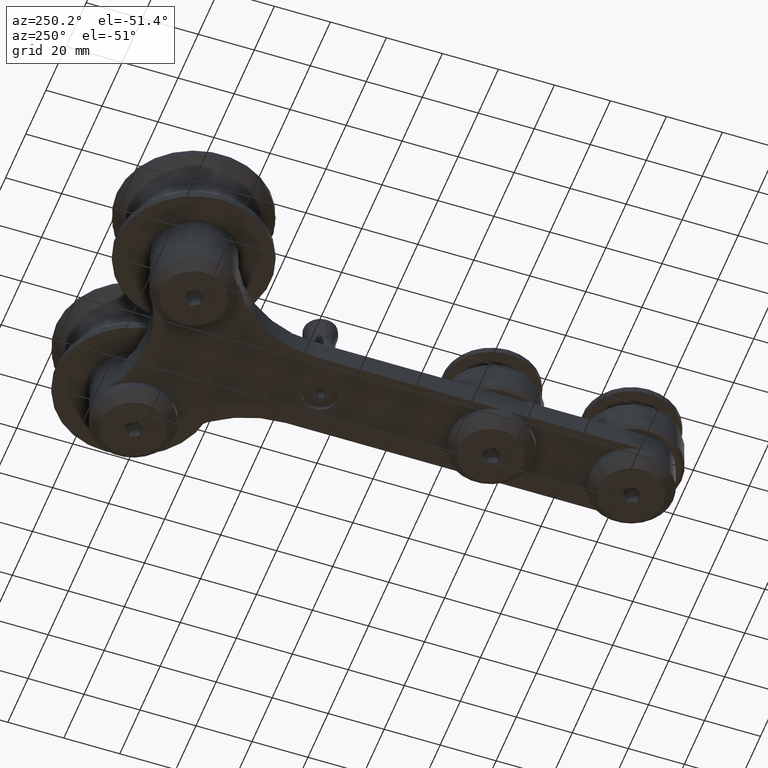
[diagram: clean part render]
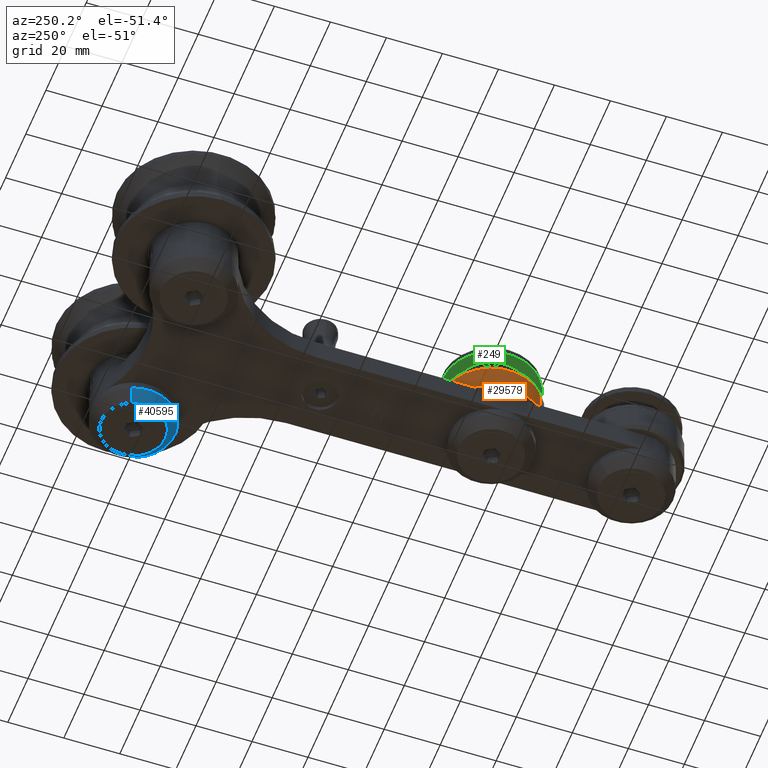
[diagram: same view with three faces highlighted in distinct colors, each labeled with its STEP entity id]
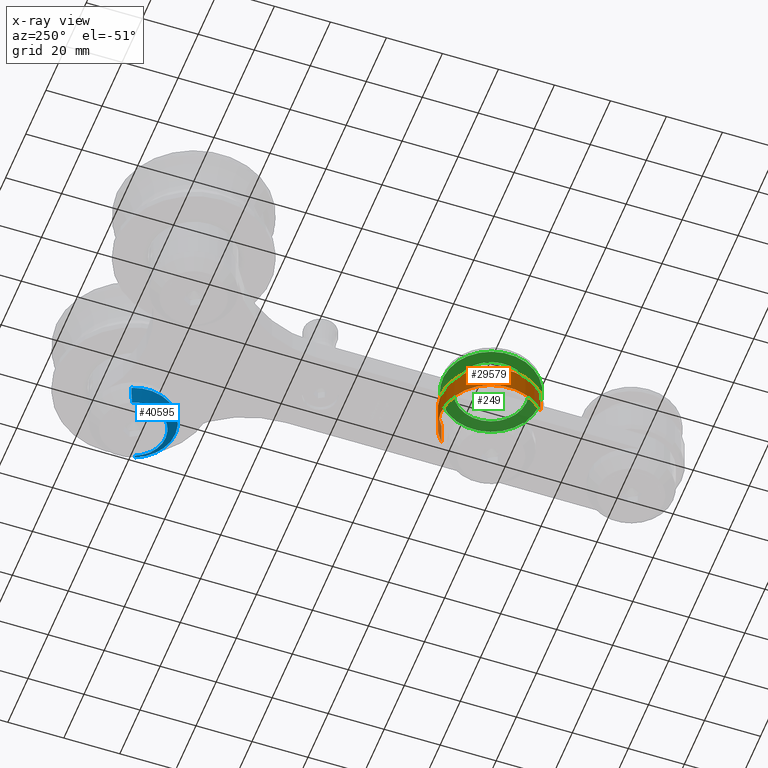
[diagram: x-ray of the same camera — body ghosted, the three highlighted faces saturated]
A machine part, auxiliary view with three faces highlighted in distinct colors.
The next image is the same camera in x-ray (body ghosted, the three faces saturated) — at least one of them is partly hidden behind the body in this view.
Their STEP definitions:

[orange] entity #29579 — the highlighted cylindrical surface (partial cylindrical patch) has radius 18 mm, axis along (-0, -0, 1).
#1122 = CARTESIAN_POINT ( 'NONE',  ( -18.00000000000000000, 2.204364238465235400E-015, 1.000000000000000900 ) ) ;
#1796 = CARTESIAN_POINT ( 'NONE',  ( -18.00000000000000000, 2.204364238465235400E-015, 10.50000000000000000 ) ) ;
#1869 = CARTESIAN_POINT ( 'NONE',  ( 0.0000000000000000000, 0.0000000000000000000, 10.19999999999998300 ) ) ;
#2170 = DIRECTION ( 'NONE',  ( -0.0000000000000000000, -0.0000000000000000000, 1.000000000000000000 ) ) ;
#2865 = EDGE_CURVE ( 'NONE', #4361, #22016, #43754, .T. ) ;
#4361 = VERTEX_POINT ( 'NONE', #1122 ) ;
#5973 = DIRECTION ( 'NONE',  ( 1.000000000000000000, 0.0000000000000000000, 0.0000000000000000000 ) ) ;
#7007 = CARTESIAN_POINT ( 'NONE',  ( -18.00000000000000000, 2.204364238465235400E-015, 10.19999999999998300 ) ) ;
#7397 = ORIENTED_EDGE ( 'NONE', *, *, #2865, .T. ) ;
#7923 = DIRECTION ( 'NONE',  ( 1.000000000000000000, 0.0000000000000000000, 0.0000000000000000000 ) ) ;
#8079 = CARTESIAN_POINT ( 'NONE',  ( 0.0000000000000000000, 0.0000000000000000000, 1.000000000000000900 ) ) ;
#13460 = AXIS2_PLACEMENT_3D ( 'NONE', #8079, #43426, #7923 ) ;
#14182 = ORIENTED_EDGE ( 'NONE', *, *, #39666, .F. ) ;
#15211 = VERTEX_POINT ( 'NONE', #30242 ) ;
#15609 = EDGE_CURVE ( 'NONE', #22016, #15211, #37664, .T. ) ;
#16618 = CARTESIAN_POINT ( 'NONE',  ( 18.00000000000000000, 0.0000000000000000000, 1.000000000000000900 ) ) ;
#16919 = FACE_OUTER_BOUND ( 'NONE', #23287, .T. ) ;
#18022 = CYLINDRICAL_SURFACE ( 'NONE', #32689, 18.00000000000000000 ) ;
#21466 = VECTOR ( 'NONE', #2170, 1000.000000000000000 ) ;
#22016 = VERTEX_POINT ( 'NONE', #16618 ) ;
#23287 = EDGE_LOOP ( 'NONE', ( #14182, #7397, #32967, #24250 ) ) ;
#24250 = ORIENTED_EDGE ( 'NONE', *, *, #38915, .T. ) ;
#25254 = AXIS2_PLACEMENT_3D ( 'NONE', #1869, #41242, #44854 ) ;
#26450 = DIRECTION ( 'NONE',  ( -0.0000000000000000000, -0.0000000000000000000, 1.000000000000000000 ) ) ;
#27617 = CARTESIAN_POINT ( 'NONE',  ( 18.00000000000000000, 0.0000000000000000000, 10.50000000000000000 ) ) ;
#29579 = ADVANCED_FACE ( 'NONE', ( #16919 ), #18022, .T. ) ;
#30242 = CARTESIAN_POINT ( 'NONE',  ( 18.00000000000000000, 0.0000000000000000000, 10.19999999999998300 ) ) ;
#31695 = VECTOR ( 'NONE', #26450, 1000.000000000000000 ) ;
#32689 = AXIS2_PLACEMENT_3D ( 'NONE', #34132, #34449, #5973 ) ;
#32967 = ORIENTED_EDGE ( 'NONE', *, *, #15609, .T. ) ;
#34132 = CARTESIAN_POINT ( 'NONE',  ( 0.0000000000000000000, 0.0000000000000000000, 10.50000000000000000 ) ) ;
#34449 = DIRECTION ( 'NONE',  ( -0.0000000000000000000, -0.0000000000000000000, 1.000000000000000000 ) ) ;
#37664 = LINE ( 'NONE', #27617, #21466 ) ;
#38915 = EDGE_CURVE ( 'NONE', #15211, #45174, #40686, .T. ) ;
#39666 = EDGE_CURVE ( 'NONE', #4361, #45174, #41205, .T. ) ;
#40686 = CIRCLE ( 'NONE', #25254, 18.00000000000000000 ) ;
#41205 = LINE ( 'NONE', #1796, #31695 ) ;
#41242 = DIRECTION ( 'NONE',  ( 0.0000000000000000000, 0.0000000000000000000, -1.000000000000000000 ) ) ;
#43426 = DIRECTION ( 'NONE',  ( -0.0000000000000000000, -0.0000000000000000000, 1.000000000000000000 ) ) ;
#43754 = CIRCLE ( 'NONE', #13460, 18.00000000000000000 ) ;
#44854 = DIRECTION ( 'NONE',  ( -1.000000000000000000, 0.0000000000000000000, 0.0000000000000000000 ) ) ;
#45174 = VERTEX_POINT ( 'NONE', #7007 ) ;

[blue] entity #40595 — the highlighted conical surface has half-angle 45 deg.
#1153 = EDGE_CURVE ( 'NONE', #18202, #23213, #28768, .T. ) ;
#2289 = CARTESIAN_POINT ( 'NONE',  ( 0.0000000000000000000, 0.0000000000000000000, 6.500000000000000900 ) ) ;
#2334 = AXIS2_PLACEMENT_3D ( 'NONE', #35688, #10542, #39271 ) ;
#2650 = CARTESIAN_POINT ( 'NONE',  ( -15.00000000000000000, 0.0000000000000000000, 2.999999999999999100 ) ) ;
#6680 = ORIENTED_EDGE ( 'NONE', *, *, #18367, .T. ) ;
#9396 = AXIS2_PLACEMENT_3D ( 'NONE', #2289, #16632, #41834 ) ;
#10542 = DIRECTION ( 'NONE',  ( -0.0000000000000000000, -0.0000000000000000000, -1.000000000000000000 ) ) ;
#11557 = VECTOR ( 'NONE', #15676, 999.9999999999998900 ) ;
#13178 = LINE ( 'NONE', #21903, #43381 ) ;
#13339 = AXIS2_PLACEMENT_3D ( 'NONE', #32049, #40302, #18876 ) ;
#14066 = EDGE_LOOP ( 'NONE', ( #24593, #6680, #14241, #41492 ) ) ;
#14241 = ORIENTED_EDGE ( 'NONE', *, *, #41835, .T. ) ;
#15676 = DIRECTION ( 'NONE',  ( -0.7071067811865473500, 0.0000000000000000000, -0.7071067811865477900 ) ) ;
#16632 = DIRECTION ( 'NONE',  ( -0.0000000000000000000, -0.0000000000000000000, -1.000000000000000000 ) ) ;
#18202 = VERTEX_POINT ( 'NONE', #33257 ) ;
#18367 = EDGE_CURVE ( 'NONE', #27700, #24339, #27371, .T. ) ;
#18784 = CARTESIAN_POINT ( 'NONE',  ( -11.50000000000000000, 0.0000000000000000000, 6.500000000000000900 ) ) ;
#18876 = DIRECTION ( 'NONE',  ( -1.000000000000000000, 0.0000000000000000000, 0.0000000000000000000 ) ) ;
#21903 = CARTESIAN_POINT ( 'NONE',  ( 15.00000000000000000, 1.836970198721029600E-015, 2.999999999999999100 ) ) ;
#22062 = DIRECTION ( 'NONE',  ( 0.7071067811865473500, 8.659560562354931600E-017, -0.7071067811865477900 ) ) ;
#23213 = VERTEX_POINT ( 'NONE', #2650 ) ;
#24339 = VERTEX_POINT ( 'NONE', #18784 ) ;
#24593 = ORIENTED_EDGE ( 'NONE', *, *, #42871, .F. ) ;
#27371 = CIRCLE ( 'NONE', #9396, 11.50000000000000000 ) ;
#27700 = VERTEX_POINT ( 'NONE', #33959 ) ;
#27735 = CONICAL_SURFACE ( 'NONE', #13339, 15.00000000000000000, 0.7853981633974480600 ) ;
#28768 = CIRCLE ( 'NONE', #2334, 15.00000000000000000 ) ;
#30526 = LINE ( 'NONE', #36692, #11557 ) ;
#32049 = CARTESIAN_POINT ( 'NONE',  ( 0.0000000000000000000, 0.0000000000000000000, 2.999999999999999100 ) ) ;
#33257 = CARTESIAN_POINT ( 'NONE',  ( 15.00000000000000000, 1.836970198721029600E-015, 2.999999999999999100 ) ) ;
#33959 = CARTESIAN_POINT ( 'NONE',  ( 11.50000000000000000, 1.622657008870242900E-015, 6.500000000000000900 ) ) ;
#35688 = CARTESIAN_POINT ( 'NONE',  ( 0.0000000000000000000, 0.0000000000000000000, 2.999999999999999100 ) ) ;
#36692 = CARTESIAN_POINT ( 'NONE',  ( -15.00000000000000000, 0.0000000000000000000, 2.999999999999999100 ) ) ;
#39271 = DIRECTION ( 'NONE',  ( -1.000000000000000000, 0.0000000000000000000, 0.0000000000000000000 ) ) ;
#40302 = DIRECTION ( 'NONE',  ( -0.0000000000000000000, -0.0000000000000000000, -1.000000000000000000 ) ) ;
#40595 = ADVANCED_FACE ( 'NONE', ( #40696 ), #27735, .T. ) ;
#40696 = FACE_OUTER_BOUND ( 'NONE', #14066, .T. ) ;
#41492 = ORIENTED_EDGE ( 'NONE', *, *, #1153, .F. ) ;
#41834 = DIRECTION ( 'NONE',  ( -1.000000000000000000, 0.0000000000000000000, 0.0000000000000000000 ) ) ;
#41835 = EDGE_CURVE ( 'NONE', #24339, #23213, #30526, .T. ) ;
#42871 = EDGE_CURVE ( 'NONE', #27700, #18202, #13178, .T. ) ;
#43381 = VECTOR ( 'NONE', #22062, 999.9999999999998900 ) ;

[green] entity #249 — the highlighted planar face has unit normal (0, 0, -1).
#249 = ADVANCED_FACE ( 'NONE', ( #2790, #7810 ), #24553, .T. ) ;
#296 = CARTESIAN_POINT ( 'NONE',  ( 12.75000000000000400, 1.561424668912875900E-015, 1.000000000000000000 ) ) ;
#746 = CIRCLE ( 'NONE', #30859, 17.25000000000000000 ) ;
#1121 = DIRECTION ( 'NONE',  ( -1.000000000000000000, 0.0000000000000000000, 0.0000000000000000000 ) ) ;
#2449 = EDGE_CURVE ( 'NONE', #34739, #19467, #746, .T. ) ;
#2790 = FACE_BOUND ( 'NONE', #7214, .T. ) ;
#2914 = CARTESIAN_POINT ( 'NONE',  ( 17.25000000000000000, 2.112515728529184500E-015, 1.000000000000000000 ) ) ;
#4373 = DIRECTION ( 'NONE',  ( 1.000000000000000000, 0.0000000000000000000, 0.0000000000000000000 ) ) ;
#6107 = DIRECTION ( 'NONE',  ( 1.000000000000000000, 0.0000000000000000000, -0.0000000000000000000 ) ) ;
#6550 = VERTEX_POINT ( 'NONE', #296 ) ;
#7214 = EDGE_LOOP ( 'NONE', ( #14471, #30572 ) ) ;
#7802 = CARTESIAN_POINT ( 'NONE',  ( 0.0000000000000000000, 0.0000000000000000000, 1.000000000000000000 ) ) ;
#7810 = FACE_OUTER_BOUND ( 'NONE', #22272, .T. ) ;
#11670 = AXIS2_PLACEMENT_3D ( 'NONE', #7802, #29077, #4373 ) ;
#12115 = CIRCLE ( 'NONE', #18283, 12.75000000000000400 ) ;
#12719 = EDGE_CURVE ( 'NONE', #6550, #23380, #12115, .T. ) ;
#14471 = ORIENTED_EDGE ( 'NONE', *, *, #26944, .T. ) ;
#14759 = EDGE_CURVE ( 'NONE', #19467, #34739, #27647, .T. ) ;
#16163 = DIRECTION ( 'NONE',  ( -1.000000000000000000, 0.0000000000000000000, 0.0000000000000000000 ) ) ;
#18283 = AXIS2_PLACEMENT_3D ( 'NONE', #45088, #34278, #45231 ) ;
#19467 = VERTEX_POINT ( 'NONE', #20094 ) ;
#20094 = CARTESIAN_POINT ( 'NONE',  ( -17.25000000000000000, 0.0000000000000000000, 1.000000000000000000 ) ) ;
#21238 = ORIENTED_EDGE ( 'NONE', *, *, #2449, .F. ) ;
#22272 = EDGE_LOOP ( 'NONE', ( #40603, #21238 ) ) ;
#22373 = AXIS2_PLACEMENT_3D ( 'NONE', #31604, #38794, #6107 ) ;
#23380 = VERTEX_POINT ( 'NONE', #43596 ) ;
#24553 = PLANE ( 'NONE',  #22373 ) ;
#26944 = EDGE_CURVE ( 'NONE', #23380, #6550, #37179, .T. ) ;
#27647 = CIRCLE ( 'NONE', #31498, 17.25000000000000000 ) ;
#29077 = DIRECTION ( 'NONE',  ( -0.0000000000000000000, -0.0000000000000000000, -1.000000000000000000 ) ) ;
#30569 = DIRECTION ( 'NONE',  ( -0.0000000000000000000, -0.0000000000000000000, -1.000000000000000000 ) ) ;
#30572 = ORIENTED_EDGE ( 'NONE', *, *, #12719, .T. ) ;
#30859 = AXIS2_PLACEMENT_3D ( 'NONE', #43959, #44258, #1121 ) ;
#31498 = AXIS2_PLACEMENT_3D ( 'NONE', #41675, #30569, #16163 ) ;
#31604 = CARTESIAN_POINT ( 'NONE',  ( 0.0000000000000000000, 12.25000000000000000, 1.000000000000000000 ) ) ;
#34278 = DIRECTION ( 'NONE',  ( -0.0000000000000000000, -0.0000000000000000000, -1.000000000000000000 ) ) ;
#34739 = VERTEX_POINT ( 'NONE', #2914 ) ;
#37179 = CIRCLE ( 'NONE', #11670, 12.75000000000000400 ) ;
#38794 = DIRECTION ( 'NONE',  ( 0.0000000000000000000, 0.0000000000000000000, 1.000000000000000000 ) ) ;
#40603 = ORIENTED_EDGE ( 'NONE', *, *, #14759, .F. ) ;
#41675 = CARTESIAN_POINT ( 'NONE',  ( 0.0000000000000000000, 0.0000000000000000000, 1.000000000000000000 ) ) ;
#43596 = CARTESIAN_POINT ( 'NONE',  ( -12.75000000000000400, 0.0000000000000000000, 1.000000000000000000 ) ) ;
#43959 = CARTESIAN_POINT ( 'NONE',  ( 0.0000000000000000000, 0.0000000000000000000, 1.000000000000000000 ) ) ;
#44258 = DIRECTION ( 'NONE',  ( -0.0000000000000000000, -0.0000000000000000000, -1.000000000000000000 ) ) ;
#45088 = CARTESIAN_POINT ( 'NONE',  ( 0.0000000000000000000, 0.0000000000000000000, 1.000000000000000000 ) ) ;
#45231 = DIRECTION ( 'NONE',  ( 1.000000000000000000, 0.0000000000000000000, 0.0000000000000000000 ) ) ;